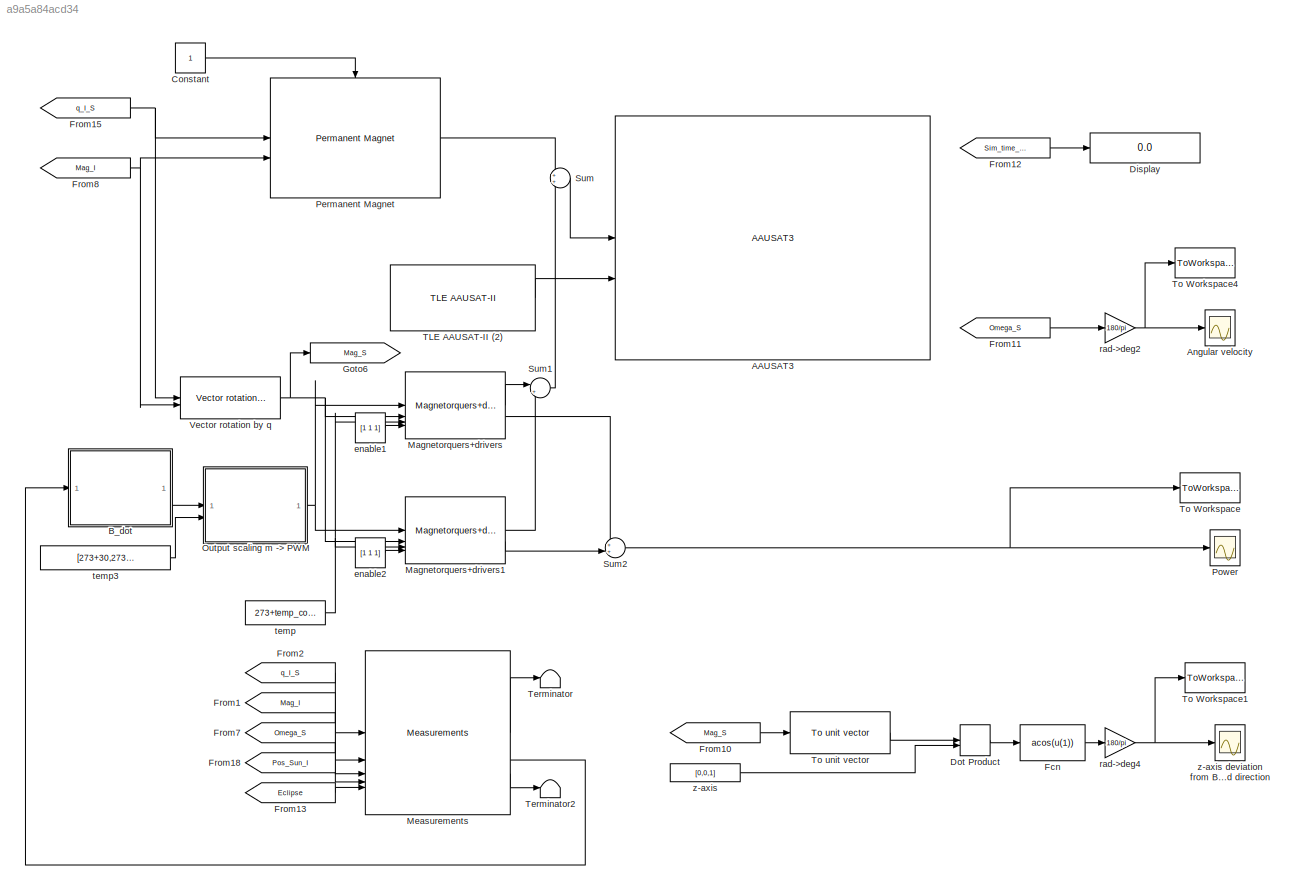
MODEL mdl_a9a5a84acd34
KIND model
CONFIG AbsTol = auto
CONFIG EnableMultiTasking = on
CONFIG FixedStep = auto
CONFIG MaxStep = auto
CONFIG MinStep = auto
CONFIG RelTol = 1e-3
CONFIG SampleTimeConstraint = Unconstrained
CONFIG SolverName = ode45
CONFIG StartTime = 0.0
CONFIG StopTime = sim_duration
BLOCK [Reference] AAUSAT3  REF=aausat3_lib/AAUSAT3  (lib defined in mdl_4157f6465749, slx_d9305f96731e)
  SourceBlock = aausat3_lib/AAUSAT3
  SourceProductName = AAUSAT3
BLOCK [Scope] Angular velocity
  Floating = off
  NumInputPorts = 1
  ScopeSpecificationString = Simulink.scopes.TimeScopeBlockCfg('CurrentConfiguration', extmgr.ConfigurationSet(extmgr.Configuration('Core','General UI',true),extmgr.Configuration('Core','Source UI',true),extmgr.Configuration('Sources','WiredSimulink',true,'DataLoggingVariableName','ScopeData2','DataLoggingSaveFormat','StructureWithTime','DataLoggingDecimation','1','DataLoggingDecimateData',true),extmgr.Configuration('Visuals'...<+1671ch>
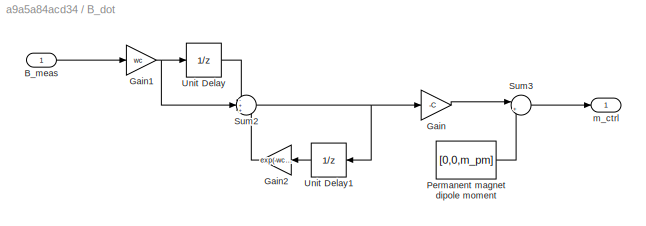
BLOCK [SubSystem] B_dot
  AncestorBlock = aausat3_lib/ACS/B_dot
BLOCK [Inport] B_dot/B_meas
BLOCK [Gain] B_dot/Gain
  Gain = -C
BLOCK [Gain] B_dot/Gain1
  Gain = wc
BLOCK [Gain] B_dot/Gain2
  Gain = exp(-wc*Ts)
  NameLocation = top
BLOCK [Constant] B_dot/Permanent magnet dipole moment
  Value = [0,0,m_pm]
BLOCK [Sum] B_dot/Sum2
  Inputs = -++
BLOCK [Sum] B_dot/Sum3
  Inputs = |++
BLOCK [UnitDelay] B_dot/Unit Delay
  SampleTime = -1
BLOCK [UnitDelay] B_dot/Unit Delay1
  NameLocation = top
  SampleTime = -1
BLOCK [Outport] B_dot/m_ctrl
  PortDimensions = 3
BLOCK [Constant] Constant
BLOCK [Display] Display
  Decimation = 1
  Format = long
BLOCK [DotProduct] Dot Product
  OutDataTypeStr = Inherit: Inherit via internal rule
BLOCK [Fcn] Fcn
  Expr = acos(u(1))
BLOCK [From] From1
  CloseFcn = tagdialog Close
  GotoTag = Mag_I
  TagVisibility = global
BLOCK [From] From10
  CloseFcn = tagdialog Close
  GotoTag = Mag_S
  TagVisibility = global
BLOCK [From] From11
  CloseFcn = tagdialog Close
  GotoTag = Omega_S
  TagVisibility = global
BLOCK [From] From12
  CloseFcn = tagdialog Close
  GotoTag = Sim_time_JD
  TagVisibility = global
BLOCK [From] From13
  CloseFcn = tagdialog Close
  GotoTag = Eclipse
  TagVisibility = global
BLOCK [From] From15
  CloseFcn = tagdialog Close
  GotoTag = q_I_S
  TagVisibility = global
BLOCK [From] From18
  CloseFcn = tagdialog Close
  GotoTag = Pos_Sun_I
  TagVisibility = global
BLOCK [From] From2
  CloseFcn = tagdialog Close
  GotoTag = q_I_S
  TagVisibility = global
BLOCK [From] From7
  CloseFcn = tagdialog Close
  GotoTag = Omega_S
  TagVisibility = global
BLOCK [From] From8
  CloseFcn = tagdialog Close
  GotoTag = Mag_I
  TagVisibility = global
BLOCK [Goto] Goto6
  GotoTag = Mag_S
  TagVisibility = global
BLOCK [Reference] Magnetorquers+drivers  REF=aausat3_lib/Actuator Emulation/Magnetorquers+drivers  (lib defined in mdl_4157f6465749, slx_d9305f96731e)
  SourceBlock = aausat3_lib/Actuator Emulation/Magnetorquers+drivers
  SourceProductName = AAUSAT3
BLOCK [Reference] Magnetorquers+drivers1  REF=aausat3_lib/Actuator Emulation/Magnetorquers+drivers  (lib defined in mdl_4157f6465749, slx_d9305f96731e)
  SourceBlock = aausat3_lib/Actuator Emulation/Magnetorquers+drivers
  SourceProductName = AAUSAT3
BLOCK [Reference] Measurements  REF=aausat3_lib/Sensor Emulation/Measurements  (lib defined in mdl_4157f6465749, slx_d9305f96731e)
  SourceBlock = aausat3_lib/Sensor Emulation/Measurements
  SourceProductName = AAUSAT3
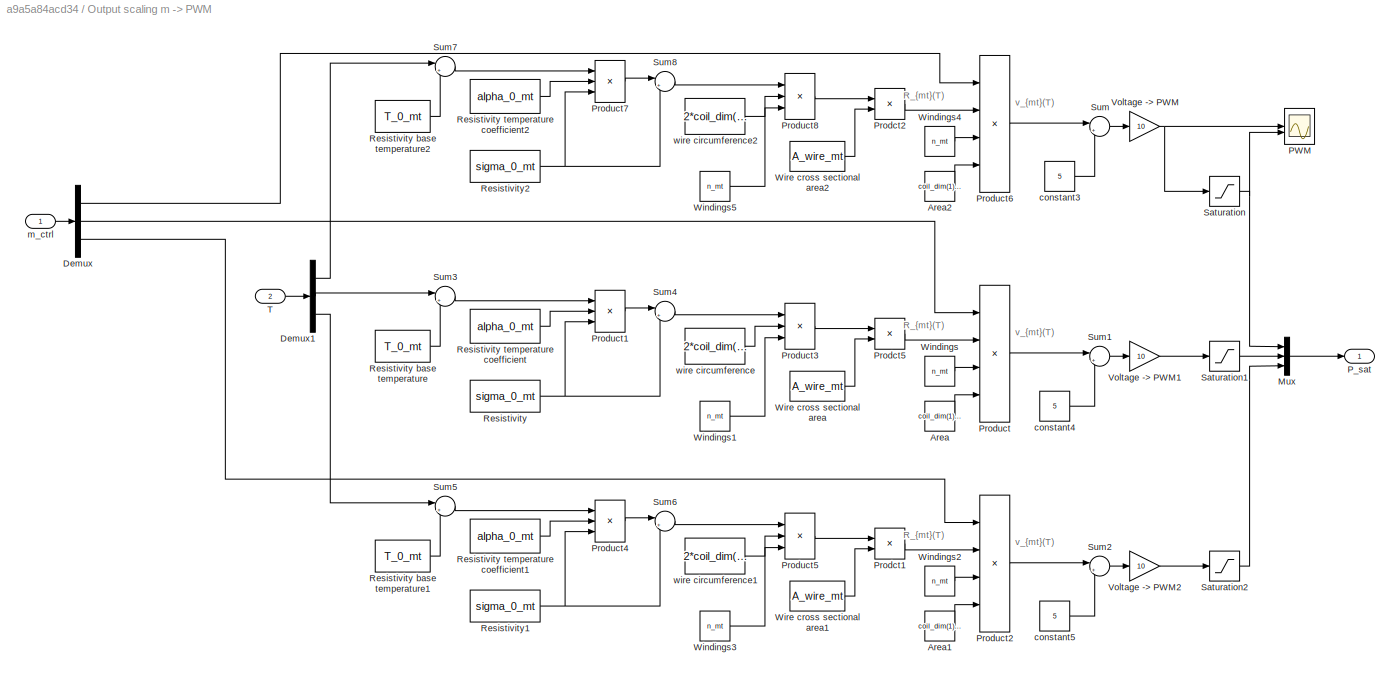
BLOCK [SubSystem] Output scaling m -> PWM
  AncestorBlock = aausat3_lib/Actuator Emulation/Output scaling\nm -> PWM
BLOCK [Constant] Output scaling m -> PWM/Area
  Value = coil_dim(1)*coil_dim(2)
BLOCK [Constant] Output scaling m -> PWM/Area1
  Value = coil_dim(1)*coil_dim(2)
BLOCK [Constant] Output scaling m -> PWM/Area2
  Value = coil_dim(1)*coil_dim(2)
BLOCK [Demux] Output scaling m -> PWM/Demux
  Outputs = 3
BLOCK [Demux] Output scaling m -> PWM/Demux1
  Outputs = 3
BLOCK [Mux] Output scaling m -> PWM/Mux
  DisplayOption = bar
  Inputs = 3
BLOCK [Scope] Output scaling m -> PWM/PWM
  Floating = off
  NumInputPorts = 2
  ScopeSpecificationString = C++SS(StrPVP('Location','[26, 68, 1581, 1015]'),StrPVP('Open','off'),MxPVP('AxesTitles',54,'struct(''axes1'',''Attitude [degree]'',''axes2'',''%<SignalLabel>'')'),StrPVP('TimeRange','5000'),StrPVP('YMin','37.5~37.5'),StrPVP('YMax','67.5~62.5'),StrPVP('SaveName','ScopeData4'),StrPVP('DataFormat','StructureWithTime'),StrPVP('LimitDataPoints','off'),StrPVP('BlockParamSampleInput','on'),StrPVP('Decima...<+11ch>
BLOCK [Outport] Output scaling m -> PWM/P_sat
  PortDimensions = 3
BLOCK [Product] Output scaling m -> PWM/Prodct1
  Inputs = */
  RndMeth = Zero
BLOCK [Product] Output scaling m -> PWM/Prodct2
  Inputs = */
  RndMeth = Zero
BLOCK [Product] Output scaling m -> PWM/Prodct5
  Inputs = */
  RndMeth = Zero
BLOCK [Product] Output scaling m -> PWM/Product
  Inputs = **//
  RndMeth = Zero
BLOCK [Product] Output scaling m -> PWM/Product1
  Inputs = 3
  RndMeth = Zero
BLOCK [Product] Output scaling m -> PWM/Product2
  Inputs = **//
  RndMeth = Zero
BLOCK [Product] Output scaling m -> PWM/Product3
  Inputs = 3
  RndMeth = Zero
BLOCK [Product] Output scaling m -> PWM/Product4
  Inputs = 3
  RndMeth = Zero
BLOCK [Product] Output scaling m -> PWM/Product5
  Inputs = 3
  RndMeth = Zero
BLOCK [Product] Output scaling m -> PWM/Product6
  Inputs = **//
  RndMeth = Zero
BLOCK [Product] Output scaling m -> PWM/Product7
  Inputs = 3
  RndMeth = Zero
BLOCK [Product] Output scaling m -> PWM/Product8
  Inputs = 3
  RndMeth = Zero
BLOCK [Constant] Output scaling m -> PWM/Resistivity
  Value = sigma_0_mt
BLOCK [Constant] Output scaling m -> PWM/Resistivity base temperature
  Value = T_0_mt
BLOCK [Constant] Output scaling m -> PWM/Resistivity base temperature1
  Value = T_0_mt
BLOCK [Constant] Output scaling m -> PWM/Resistivity base temperature2
  Value = T_0_mt
BLOCK [Constant] Output scaling m -> PWM/Resistivity temperature coefficient
  Value = alpha_0_mt
BLOCK [Constant] Output scaling m -> PWM/Resistivity temperature coefficient1
  Value = alpha_0_mt
BLOCK [Constant] Output scaling m -> PWM/Resistivity temperature coefficient2
  Value = alpha_0_mt
BLOCK [Constant] Output scaling m -> PWM/Resistivity1
  Value = sigma_0_mt
BLOCK [Constant] Output scaling m -> PWM/Resistivity2
  Value = sigma_0_mt
BLOCK [Saturate] Output scaling m -> PWM/Saturation
  LowerLimit = PWM_min
  UpperLimit = PWM_max
BLOCK [Saturate] Output scaling m -> PWM/Saturation1
  LowerLimit = PWM_min
  UpperLimit = PWM_max
BLOCK [Saturate] Output scaling m -> PWM/Saturation2
  LowerLimit = PWM_min
  UpperLimit = PWM_max
BLOCK [Sum] Output scaling m -> PWM/Sum
  Inputs = |++
BLOCK [Sum] Output scaling m -> PWM/Sum1
  Inputs = |++
BLOCK [Sum] Output scaling m -> PWM/Sum2
  Inputs = |++
BLOCK [Sum] Output scaling m -> PWM/Sum3
  Inputs = |+-
BLOCK [Sum] Output scaling m -> PWM/Sum4
  Inputs = |++
BLOCK [Sum] Output scaling m -> PWM/Sum5
  Inputs = |+-
BLOCK [Sum] Output scaling m -> PWM/Sum6
  Inputs = |++
BLOCK [Sum] Output scaling m -> PWM/Sum7
  Inputs = |+-
BLOCK [Sum] Output scaling m -> PWM/Sum8
  Inputs = |++
BLOCK [Inport] Output scaling m -> PWM/T
  Port = 2
BLOCK [Gain] Output scaling m -> PWM/Voltage -> PWM
  Gain = 10
BLOCK [Gain] Output scaling m -> PWM/Voltage -> PWM1
  Gain = 10
BLOCK [Gain] Output scaling m -> PWM/Voltage -> PWM2
  Gain = 10
BLOCK [Constant] Output scaling m -> PWM/Windings
  Value = n_mt
BLOCK [Constant] Output scaling m -> PWM/Windings1
  Value = n_mt
BLOCK [Constant] Output scaling m -> PWM/Windings2
  Value = n_mt
BLOCK [Constant] Output scaling m -> PWM/Windings3
  Value = n_mt
BLOCK [Constant] Output scaling m -> PWM/Windings4
  Value = n_mt
BLOCK [Constant] Output scaling m -> PWM/Windings5
  Value = n_mt
BLOCK [Constant] Output scaling m -> PWM/Wire cross sectional area
  Value = A_wire_mt
BLOCK [Constant] Output scaling m -> PWM/Wire cross sectional area1
  Value = A_wire_mt
BLOCK [Constant] Output scaling m -> PWM/Wire cross sectional area2
  Value = A_wire_mt
BLOCK [Constant] Output scaling m -> PWM/constant3
  Value = 5
BLOCK [Constant] Output scaling m -> PWM/constant4
  Value = 5
BLOCK [Constant] Output scaling m -> PWM/constant5
  Value = 5
BLOCK [Inport] Output scaling m -> PWM/m_ctrl
BLOCK [Constant] Output scaling m -> PWM/wire circumference
  Value = 2*coil_dim(1)+2*coil_dim(2)
BLOCK [Constant] Output scaling m -> PWM/wire circumference1
  Value = 2*coil_dim(1)+2*coil_dim(2)
BLOCK [Constant] Output scaling m -> PWM/wire circumference2
  Value = 2*coil_dim(1)+2*coil_dim(2)
BLOCK [Reference] Permanent Magnet  REF=aausat3_lib/Actuator Emulation/Permanent Magnet  (lib defined in mdl_4157f6465749, slx_d9305f96731e)
  SourceBlock = aausat3_lib/Actuator Emulation/Permanent Magnet
  SourceProductName = AAUSAT3
BLOCK [Scope] Power
  Floating = off
  NumInputPorts = 1
  ScopeSpecificationString = Simulink.scopes.TimeScopeBlockCfg('CurrentConfiguration', extmgr.ConfigurationSet(extmgr.Configuration('Core','General UI',true),extmgr.Configuration('Core','Source UI',true),extmgr.Configuration('Sources','WiredSimulink',true,'DataLoggingVariableName','ScopeData3','DataLoggingSaveFormat','StructureWithTime','DataLoggingDecimation','1','DataLoggingDecimateData',true),extmgr.Configuration('Visuals'...<+1643ch>
BLOCK [Sum] Sum
BLOCK [Sum] Sum1
  Inputs = |++
BLOCK [Sum] Sum2
  Inputs = ++|
BLOCK [Reference] TLE AAUSAT-II (2)  REF=aausat3_lib/Orbit and Ephemeris/TLE AAUSAT-II  (lib defined in mdl_4157f6465749, slx_d9305f96731e)
  SourceBlock = aausat3_lib/Orbit and Ephemeris/TLE AAUSAT-II
  SourceProductName = AAUSAT3
BLOCK [Terminator] Terminator
BLOCK [Terminator] Terminator2
BLOCK [ToWorkspace] To Workspace
  MaxDataPoints = inf
  SampleTime = 0.1
  VariableName = power_mt
BLOCK [ToWorkspace] To Workspace1
  MaxDataPoints = inf
  SampleTime = 1
  VariableName = angle_z_B
BLOCK [ToWorkspace] To Workspace4
  MaxDataPoints = inf
  SampleTime = 1
  VariableName = omega_s
BLOCK [Reference] To unit vector  REF=aausat3_lib/Math Utilities/Vector operations/To unit vector  (lib defined in mdl_4157f6465749, slx_d9305f96731e)
  SourceBlock = aausat3_lib/Math Utilities/Vector operations/To unit vector
  SourceProductName = AAUSAT3
  SourceType = SubSystem
BLOCK [Reference] Vector rotation by q  REF=aausat3_lib/Actuator Emulation/Permanent Magnet/Vector rotation by q  (lib defined in mdl_4157f6465749, slx_d9305f96731e)
  SourceBlock = aausat3_lib/Actuator Emulation/Permanent Magnet/Vector rotation by q
  SourceProductName = AAUSAT3
  SourceType = SubSystem
BLOCK [Constant] enable1
  Value = [1 1 1]
BLOCK [Constant] enable2
  Value = [1 1 1]
  VectorParams1D = off
BLOCK [Gain] rad->deg2
  Gain = 180/pi
BLOCK [Gain] rad->deg4
  Gain = 180/pi
BLOCK [Constant] temp
  Value = 273+temp_coil
BLOCK [Constant] temp3
  Value = [273+30,273+30,273+30]
BLOCK [Constant] z-axis
  Value = [0,0,1]
BLOCK [Scope] z-axis deviation from B-field direction
  Floating = off
  NumInputPorts = 1
  ScopeSpecificationString = Simulink.scopes.TimeScopeBlockCfg('CurrentConfiguration', extmgr.ConfigurationSet(extmgr.Configuration('Core','General UI',true),extmgr.Configuration('Core','Source UI',true),extmgr.Configuration('Sources','WiredSimulink',true,'DataLoggingVariableName','ScopeData9','DataLoggingSaveFormat','StructureWithTime','SampleTime','1','DataLoggingDecimation','1','DataLoggingDecimateData',true),extmgr.Config...<+1732ch>
ANNOTATION Output scaling m -> PWM: R_{mt}(T)
ANNOTATION Output scaling m -> PWM: v_{mt}(T)
LINE B_dot:1 -> Output scaling m -> PWM:1
LINE Constant:1 -> Permanent Magnet:enable
LINE Dot Product:1 -> Fcn:1
LINE Fcn:1 -> rad->deg4:1
LINE From10:1 -> To unit vector:1
LINE From11:1 -> rad->deg2:1
LINE From12:1 -> Display:1
LINE From13:1 -> Measurements:5
NET From15:1 -> Permanent Magnet:1, Vector rotation by q:1
LINE From18:1 -> Measurements:4
LINE From1:1 -> Measurements:2
LINE From2:1 -> Measurements:1
LINE From7:1 -> Measurements:3
NET From8:1 -> Permanent Magnet:2, Vector rotation by q:2
LINE Magnetorquers+drivers1:1 -> Sum1:2
LINE Magnetorquers+drivers1:2 -> Sum2:2
LINE Magnetorquers+drivers:1 -> Sum1:1
LINE Magnetorquers+drivers:2 -> Sum2:1
LINE Measurements:1 -> Terminator:1
LINE Measurements:2 -> B_dot:1
LINE Measurements:3 -> Terminator2:1
NET Output scaling m -> PWM:1 -> Magnetorquers+drivers1:1, Magnetorquers+drivers:1
LINE Permanent Magnet:1 -> Sum:1
LINE Sum1:1 -> Sum:2
NET Sum2:1 -> Power:1, To Workspace:1
LINE Sum:1 -> AAUSAT3:1
LINE TLE AAUSAT-II (2):1 -> AAUSAT3:2
LINE To unit vector:1 -> Dot Product:1
NET Vector rotation by q:1 -> Goto6:1, Magnetorquers+drivers1:2, Magnetorquers+drivers:2
LINE enable1:1 -> Magnetorquers+drivers:4
LINE enable2:1 -> Magnetorquers+drivers1:4
NET rad->deg2:1 -> Angular velocity:1, To Workspace4:1
NET rad->deg4:1 -> To Workspace1:1, z-axis deviation from B-field direction:1
LINE temp3:1 -> Output scaling m -> PWM:2
NET temp:1 -> Magnetorquers+drivers1:3, Magnetorquers+drivers:3
LINE z-axis:1 -> Dot Product:2
note: NET lines group one-source signal fan-out (src -> all destinations, sorted); 1:1 wires keep LINE
